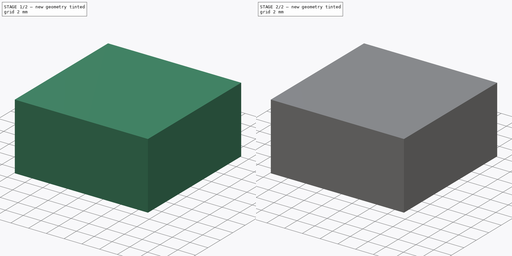
[diagram: build sequence overview — one tinted view per stage of 2, left to right]
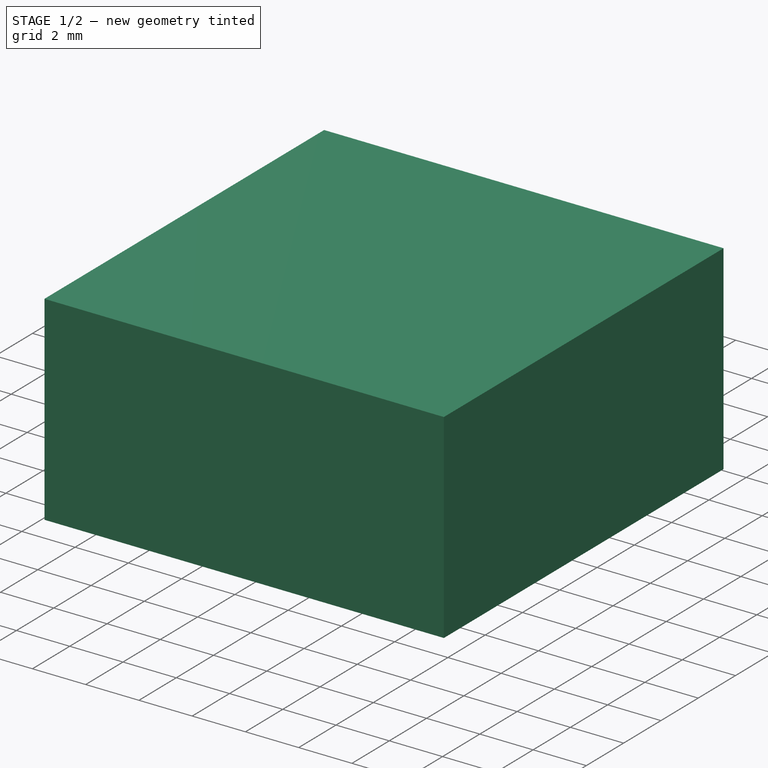
[diagram: stage 1 of 2 — iso view after this stage's code; geometry added in this stage tinted green]
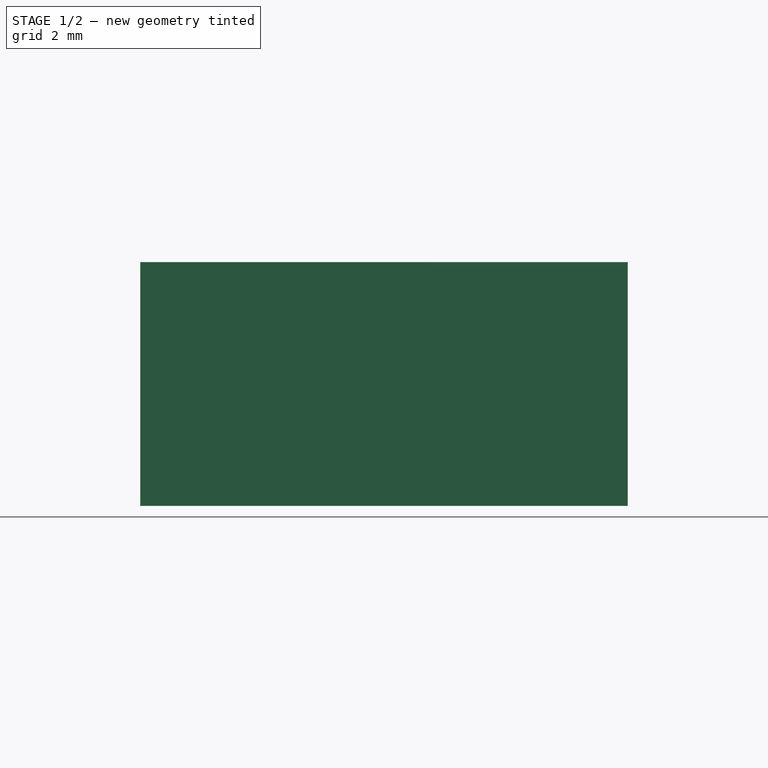
[diagram: stage 1 of 2 — front view after this stage's code; geometry added in this stage tinted green]
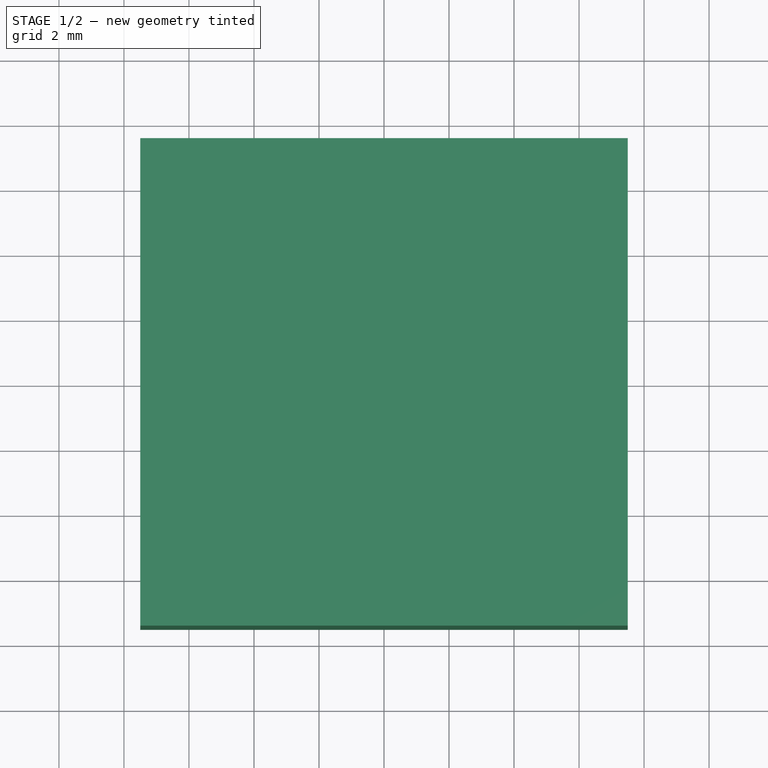
[diagram: stage 1 of 2 — top view after this stage's code; geometry added in this stage tinted green]
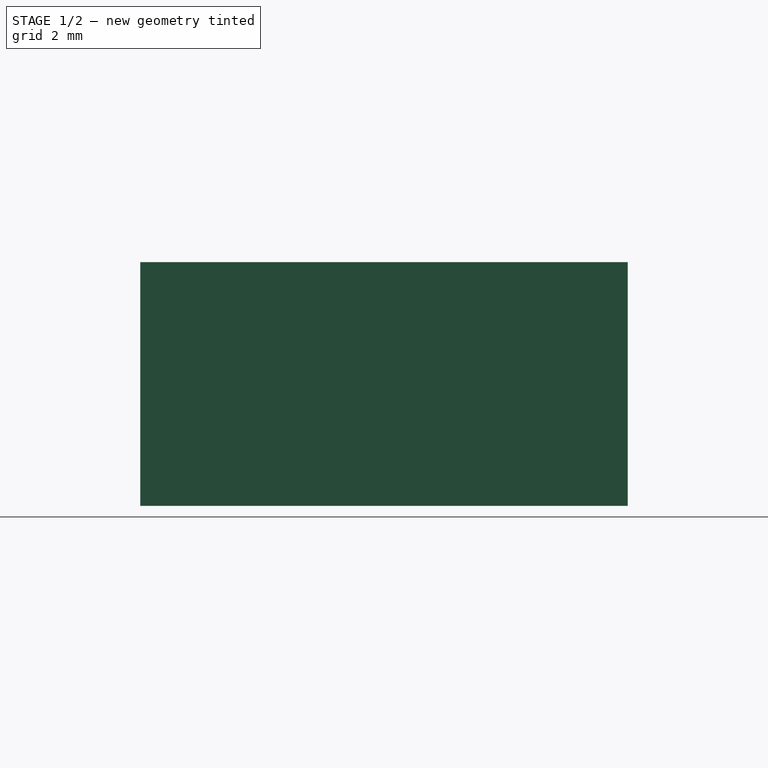
[diagram: stage 1 of 2 — right view after this stage's code; geometry added in this stage tinted green]
FCSTD DOCUMENT  (FreeCAD 1.0R39109 (Git))
Label: KeyCap-DerGerät
License: All rights reserved
LicenseURL: https://en.wikipedia.org/wiki/All_rights_reserved
objects: Sketcher::SketchObject×3, PartDesign::Pocket×2, PartDesign::Pad×1, PartDesign::Fillet×1, PartDesign::Body×1
note: 19 computed .brp shape members not serialized (recipe doc carries the construction recipe); baked Part::Feature solids carry a one-line shape summary decoded from their .brp

FEATURE [Sketcher::SketchObject] Sketch
  ArcFitTolerance = 1e-06
  AttachmentSupport = -> [XY_Plane]
  FullyConstrained = true
  MakeInternals = false
  MapMode = 5
  sketch-geometry (5):
    g0: LineSegment StartX=-7.5 StartY=-7.5 StartZ=0 EndX=7.5 EndY=-7.5 EndZ=0
    g1: LineSegment StartX=7.5 StartY=-7.5 StartZ=0 EndX=7.5 EndY=7.5 EndZ=0
    g2: LineSegment StartX=7.5 StartY=7.5 StartZ=0 EndX=-7.5 EndY=7.5 EndZ=0
    g3: LineSegment StartX=-7.5 StartY=7.5 StartZ=0 EndX=-7.5 EndY=-7.5 EndZ=0
    g4: GeomPoint [constr] X=0 Y=0 Z=0
  constraints (12):
    c: Coincident(g0,g1)
    c: Coincident(g1,g2)
    c: Coincident(g2,g3)
    c: Coincident(g3,g0)
    c: Horizontal(g0)
    c: Horizontal(g2)
    c: Vertical(g1)
    c: Vertical(g3)
    c: Symmetric(g2,g0,g4)
    c: Distance(g1,g3) = 15
    c: Distance(g0,g2) = 15
    c: Coincident(g4,g-1)
FEATURE [PartDesign::Pad] Pad
  Direction = (0,0,1)
  Length = 7.5
  Length2 = 10
  Profile = -> Sketch
  ReferenceAxis = -> Sketch [N_Axis]
  Refine = true
  Suppressed = false
  Type = 0
FEATURE [Sketcher::SketchObject] Sketch001
  ArcFitTolerance = 1e-06
  AttachmentSupport = -> [Pad]
  FullyConstrained = true
  MakeInternals = false
  MapMode = 5
  Placement = pos=(0,0,0) rot=(1,0,0;3.14159rad)
  sketch-geometry (1):
    g0: Circle CenterX=0 CenterY=0 CenterZ=0 NormalX=0 NormalY=0 NormalZ=1 AngleXU=0 Radius=1.65
  constraints (2):
    c: Diameter(g0) = 3.3
    c: Coincident(g0,g-1)
FEATURE [PartDesign::Pocket] Pocket
  BaseFeature = -> Pad
  Direction = (0,0,1)
  Length = 0.7
  Length2 = 5
  Profile = -> Sketch001
  ReferenceAxis = -> Sketch001 [N_Axis]
  Refine = true
  Suppressed = false
  Type = 0
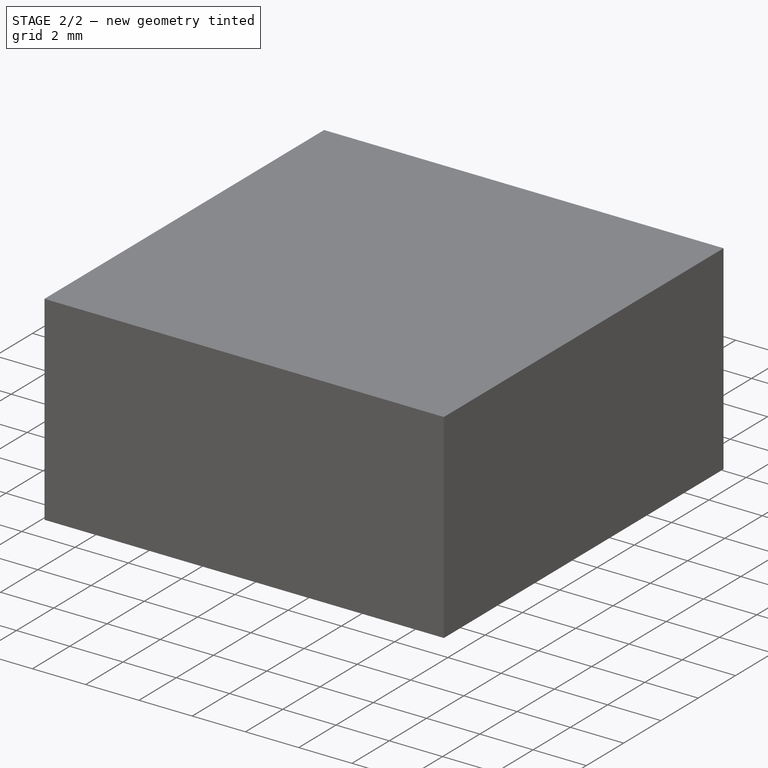
[diagram: stage 2 of 2 — iso view after this stage's code; geometry added in this stage tinted green]
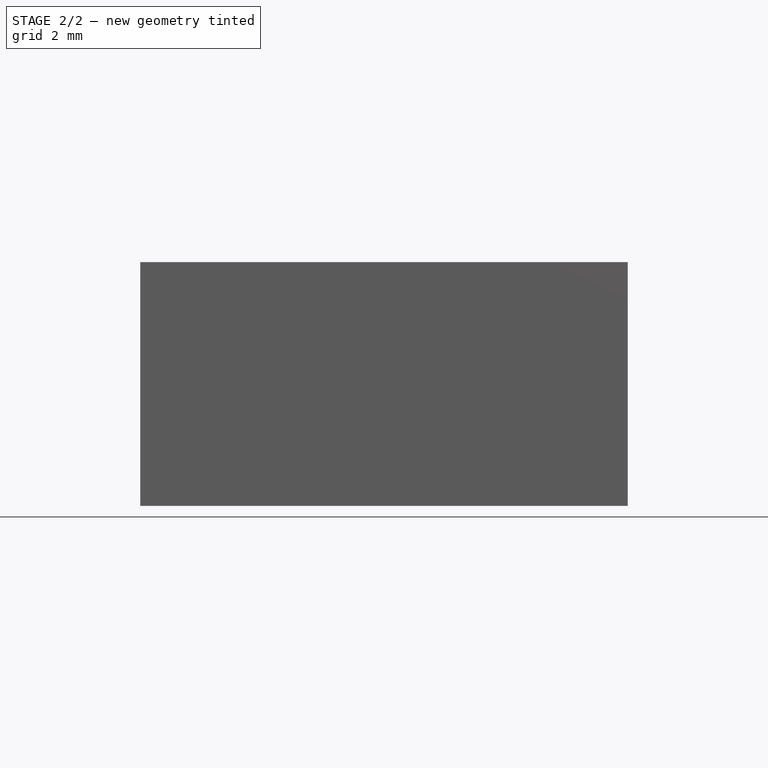
[diagram: stage 2 of 2 — front view after this stage's code; geometry added in this stage tinted green]
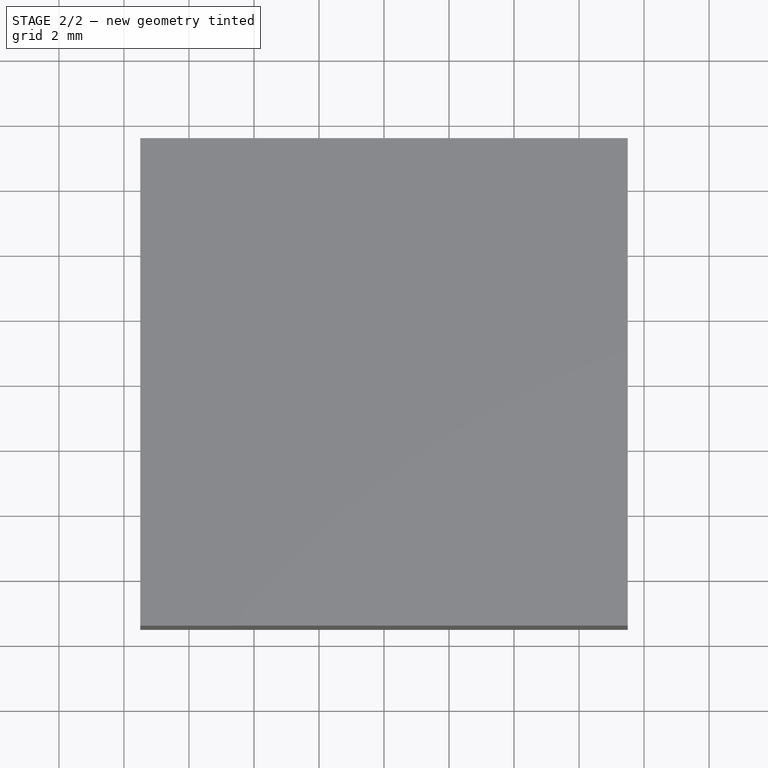
[diagram: stage 2 of 2 — top view after this stage's code; geometry added in this stage tinted green]
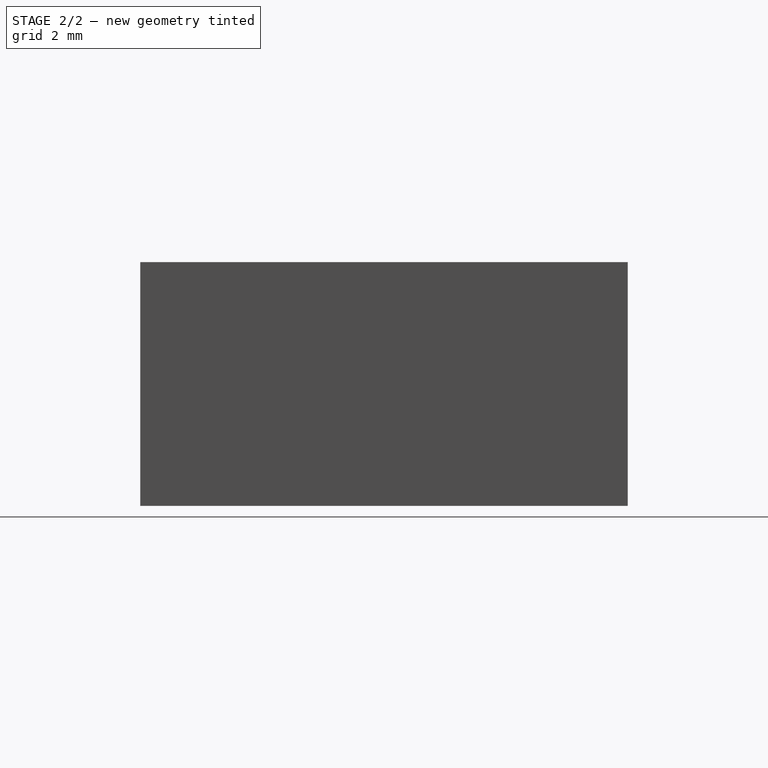
[diagram: stage 2 of 2 — right view after this stage's code; geometry added in this stage tinted green]
FEATURE [Sketcher::SketchObject] Sketch002
  ArcFitTolerance = 1e-06
  AttachmentSupport = -> [Pocket]
  FullyConstrained = true
  MakeInternals = false
  MapMode = 5
  Placement = pos=(0,0,7.5) rot=(0,0,1;0rad)
  sketch-geometry (26):
    g0: LineSegment StartX=-3 StartY=-2 StartZ=0 EndX=-3 EndY=-4 EndZ=0
    g1: LineSegment StartX=-3 StartY=-4 StartZ=0 EndX=3 EndY=-4 EndZ=0
    g2: LineSegment StartX=3 StartY=-4 StartZ=0 EndX=3 EndY=-2 EndZ=0
    g3: LineSegment StartX=3 StartY=-2 StartZ=0 EndX=-3 EndY=-2 EndZ=0
    g4: LineSegment [constr] StartX=-3 StartY=-4 StartZ=0 EndX=3 EndY=-2 EndZ=0
    g5: GeomPoint [constr] X=0 Y=-3 Z=0
    g6: LineSegment StartX=1 StartY=1 StartZ=0 EndX=1 EndY=-1 EndZ=0
    g7: LineSegment StartX=1 StartY=-1 StartZ=0 EndX=7 EndY=-1 EndZ=0
    g8: LineSegment StartX=7 StartY=-1 StartZ=0 EndX=7 EndY=1 EndZ=0
    g9: LineSegment StartX=7 StartY=1 StartZ=0 EndX=1 EndY=1 EndZ=0
    g10: LineSegment [constr] StartX=1 StartY=-1 StartZ=0 EndX=7 EndY=1 EndZ=0
    g11: LineSegment StartX=-7 StartY=1 StartZ=0 EndX=-7 EndY=-1 EndZ=0
    g12: LineSegment StartX=-7 StartY=-1 StartZ=0 EndX=-1 EndY=-1 EndZ=0
    g13: LineSegment StartX=-1 StartY=-1 StartZ=0 EndX=-1 EndY=1 EndZ=0
    g14: LineSegment StartX=-1 StartY=1 StartZ=0 EndX=-7 EndY=1 EndZ=0
    g15: LineSegment [constr] StartX=-7 StartY=-1 StartZ=0 EndX=-1 EndY=1 EndZ=0
    g16: LineSegment StartX=-3 StartY=4 StartZ=0 EndX=-3 EndY=2 EndZ=0
    g17: LineSegment StartX=-3 StartY=2 StartZ=0 EndX=3 EndY=2 EndZ=0
    g18: LineSegment StartX=3 StartY=2 StartZ=0 EndX=3 EndY=4 EndZ=0
    g19: LineSegment StartX=3 StartY=4 StartZ=0 EndX=-3 EndY=4 EndZ=0
    g20: LineSegment [constr] StartX=-3 StartY=2 StartZ=0 EndX=3 EndY=4 EndZ=0
    g21: GeomPoint [constr] X=0 Y=3 Z=0
    g22: GeomPoint [constr] X=-4 Y=0 Z=0
    g23: GeomPoint [constr] X=4 Y=0 Z=0
    g24: LineSegment [constr] StartX=-1 StartY=1 StartZ=0 EndX=1 EndY=-1 EndZ=0
    g25: LineSegment [constr] StartX=3 StartY=-2 StartZ=0 EndX=-3 EndY=2 EndZ=0
  constraints (64):
    c: Coincident(g0,g1)
    c: Coincident(g1,g2)
    c: Coincident(g2,g3)
    c: Coincident(g3,g0)
    c: Vertical(g0)
    c: Vertical(g2)
    c: Horizontal(g1)
    c: Horizontal(g3)
    c: Distance(g2,g2) = 2
    c: DistanceX(g1,g1) = 6
    c: Coincident(g4,g0)
    c: Coincident(g4,g2)
    c: Symmetric(g4,g4,g5)
    c: PointOnObject(g5,g-2)
    c: Coincident(g6,g7)
    c: Coincident(g7,g8)
    c: Coincident(g8,g9)
    c: Coincident(g9,g6)
    c: Vertical(g6)
    c: Vertical(g8)
    c: Horizontal(g7)
    c: Horizontal(g9)
    c: Distance(g8,g8) = 2
    c: DistanceX(g7,g7) = 6
    c: Coincident(g10,g6)
    c: Coincident(g10,g8)
    c: Coincident(g11,g12)
    c: Coincident(g12,g13)
    c: Coincident(g13,g14)
    c: Coincident(g14,g11)
    c: Vertical(g11)
    c: Vertical(g13)
    c: Horizontal(g12)
    c: Horizontal(g14)
    c: Distance(g13,g13) = 2
    c: DistanceX(g12,g12) = 6
    c: Coincident(g15,g11)
    c: Coincident(g15,g13)
    c: Coincident(g16,g17)
    c: Coincident(g17,g18)
    c: Coincident(g18,g19)
    c: Coincident(g19,g16)
    c: Vertical(g16)
    c: Vertical(g18)
    c: Horizontal(g17)
    c: Horizontal(g19)
    c: Distance(g18,g18) = 2
    c: DistanceX(g17,g17) = 6
    c: Coincident(g20,g16)
    c: Coincident(g20,g18)
    c: Symmetric(g20,g20,g21)
    c: PointOnObject(g21,g-2)
    c: Symmetric(g10,g10,g23)
    c: Symmetric(g15,g15,g22)
    c: PointOnObject(g22,g-1)
    c: PointOnObject(g23,g-1)
    c: Coincident(g24,g13)
    c: Coincident(g24,g6)
    c: PointOnObject(g-1,g24)
    c: Distance(g6,g13) = 2
    c: Coincident(g25,g2)
    c: Coincident(g25,g16)
    c: PointOnObject(g-1,g25)
    c: Distance(g7,g3) = 1
FEATURE [PartDesign::Pocket] Pocket001
  BaseFeature = -> Pocket
  Direction = (0,0,-1)
  Length = 1
  Length2 = 5
  Profile = -> Sketch002
  ReferenceAxis = -> Sketch002 [N_Axis]
  Refine = true
  Suppressed = false
  Type = 0
FEATURE [PartDesign::Fillet] Fillet
  Base = -> Pocket [Edge10,Edge13,Edge7,Edge4]
  BaseFeature = -> Pocket
  Radius = 0.5
  Refine = true
  SupportTransform = false
  Suppressed = false
  UseAllEdges = false
FEATURE [PartDesign::Body] Body  label="Körper"
  AllowCompound = false
  Group = -> [Sketch,Pad,Sketch001,Pocket,Sketch002,Pocket001,Fillet]
  Origin = -> Origin
  Tip = -> Fillet
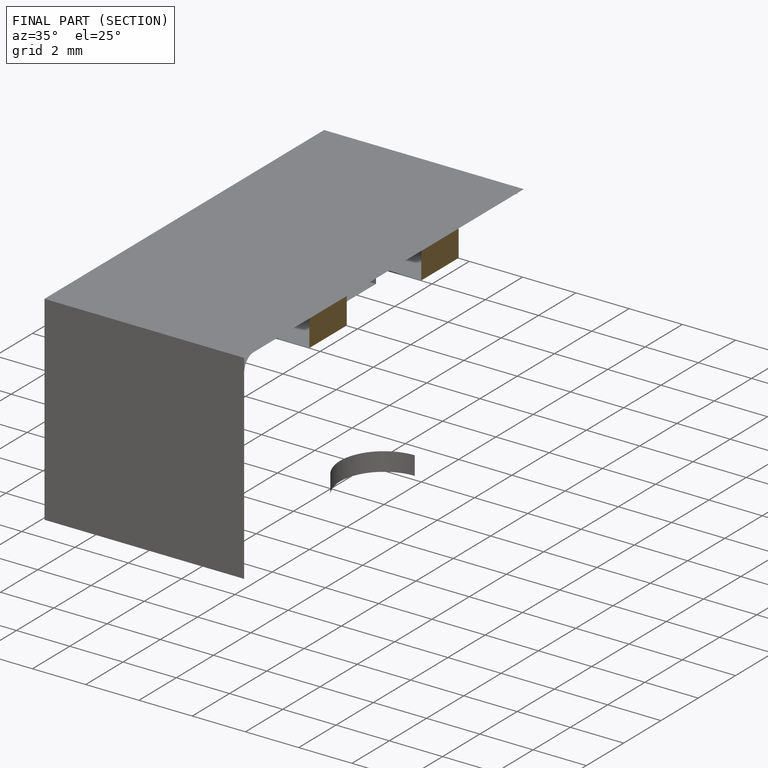
[diagram: finished part — half-section view (interior)]
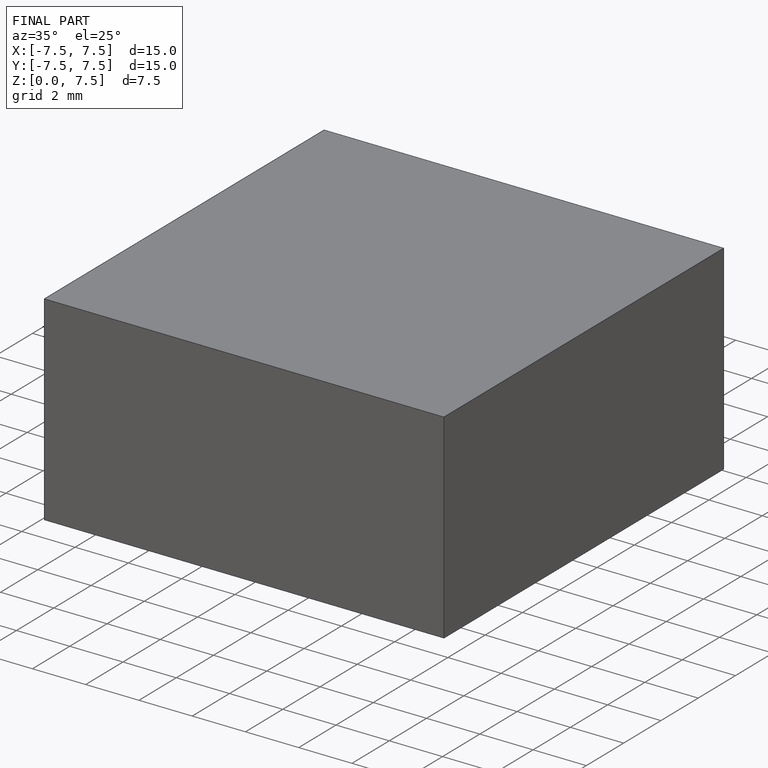
[diagram: finished part — iso view with bounding-box wireframe]
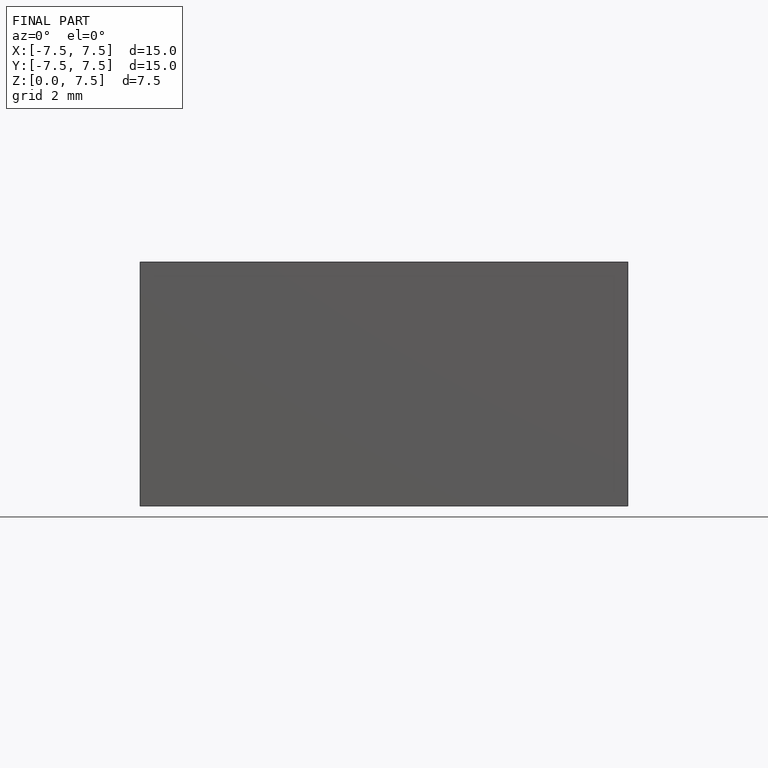
[diagram: finished part — front view with bounding-box wireframe]
